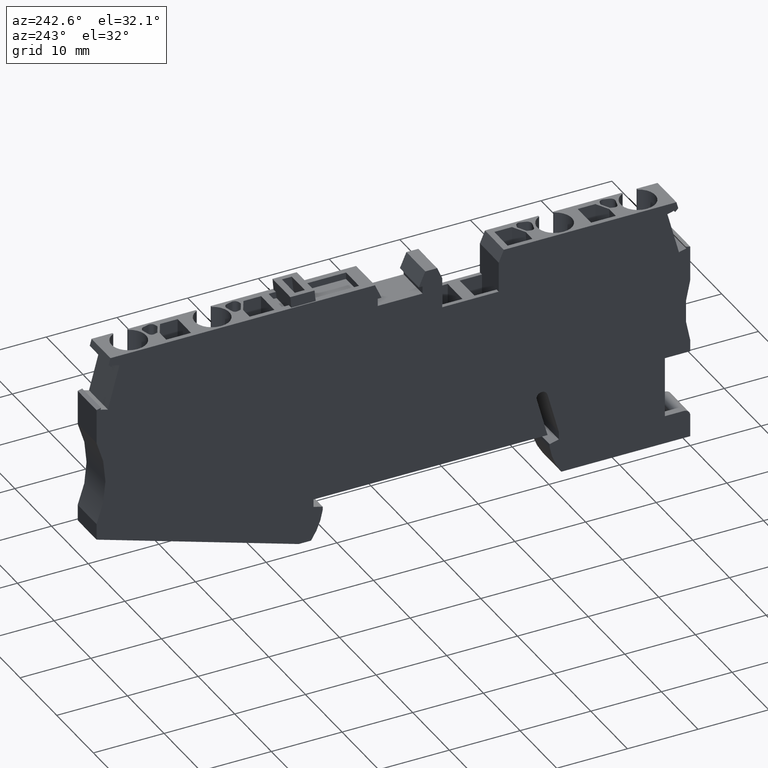
[diagram: clean part render]
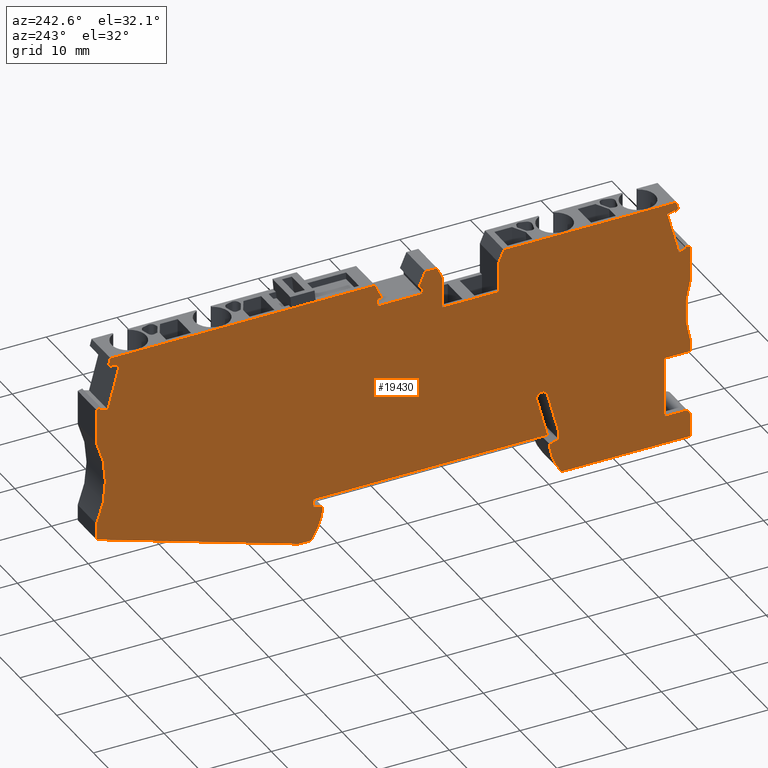
[diagram: same view with one face highlighted and labeled with its STEP entity id]
A machine part, auxiliary view. The second image highlights one B-rep face of the part: STEP entity #19430.
In plain terms, the highlighted planar face has unit normal (1, 0, -0).
Its self-contained STEP definition (entity closure, byte-faithful):
#100=CARTESIAN_POINT('',(-22.3678327783245,-21.2000000001803,
48.5199999999973));
#110=VERTEX_POINT('',#100);
#160=CARTESIAN_POINT('',(-22.3678327783245,-39.6931569607133,
48.5199999999973));
#170=DIRECTION('',(-2.05391259555654E-15,1.,0.));
#180=VECTOR('',#170,1.);
#190=LINE('',#160,#180);
#200=CARTESIAN_POINT('',(-22.3678327783245,-16.3000793279218,
48.5199999999973));
#210=VERTEX_POINT('',#200);
#220=EDGE_CURVE('',#110,#210,#190,.T.);
#1020=CARTESIAN_POINT('',(15.5196672216766,-44.3451570119223,
48.5199999999973));
#1030=DIRECTION('',(0.,1.,0.));
#1040=VECTOR('',#1030,1.);
#1050=LINE('',#1020,#1040);
#1060=CARTESIAN_POINT('',(15.5196672216766,-12.3250000000004,
48.5199999999973));
#1070=VERTEX_POINT('',#1060);
#1080=CARTESIAN_POINT('',(15.5196672216766,-11.2550000000008,
48.5199999999973));
#1090=VERTEX_POINT('',#1080);
#1100=EDGE_CURVE('',#1070,#1090,#1050,.T.);
#1550=CARTESIAN_POINT('',(13.4506669409568,-9.15000000000267,
48.5199999999973));
#1560=VERTEX_POINT('',#1550);
#1710=CARTESIAN_POINT('',(12.7321672216753,-10.8500000000026,
48.5199999999973));
#1720=VERTEX_POINT('',#1710);
#1750=CARTESIAN_POINT('',(-0.588529799346603,-42.3673191137585,
48.5199999999973));
#1760=DIRECTION('',(-0.389303997086923,-0.921109330021222,0.));
#1770=VECTOR('',#1760,1.);
#1780=LINE('',#1750,#1770);
#1790=EDGE_CURVE('',#1560,#1720,#1780,.T.);
#1960=CARTESIAN_POINT('',(-4.69574524451491,-41.8630164687898,
48.5199999999973));
#1970=DIRECTION('',(0.258819045102717,0.965925826289016,0.));
#1980=VECTOR('',#1970,1.);
#1990=LINE('',#1960,#1980);
#2000=CARTESIAN_POINT('',(-3.76783277832417,-38.3999999999923,
48.5199999999973));
#2010=VERTEX_POINT('',#2000);
#2020=CARTESIAN_POINT('',(-2.15824717892767,-32.3929447639182,
48.5199999999973));
#2030=VERTEX_POINT('',#2020);
#2040=EDGE_CURVE('',#2010,#2030,#1990,.T.);
#3620=CARTESIAN_POINT('',(21.3167687545899,-11.2550000000008,
48.5199999999973));
#3630=VERTEX_POINT('',#3620);
#3780=CARTESIAN_POINT('',(21.8446672216767,-11.2550000000008,
48.5199999999973));
#3790=VERTEX_POINT('',#3780);
#3820=CARTESIAN_POINT('',(-30.9543174626305,-11.2550000000008,
48.5199999999973));
#3830=DIRECTION('',(1.,0.,0.));
#3840=VECTOR('',#3830,1.);
#3850=LINE('',#3820,#3840);
#3860=EDGE_CURVE('',#3630,#3790,#3850,.T.);
#5350=CARTESIAN_POINT('',(15.1225128467016,-9.15000000000248,
48.5199999999973));
#5360=VERTEX_POINT('',#5350);
#5390=CARTESIAN_POINT('',(31.4487054040428,-46.3009969707497,
48.5199999999973));
#5400=DIRECTION('',(0.402320578211921,-0.915498854366965,0.));
#5410=VECTOR('',#5400,1.);
#5420=LINE('',#5390,#5410);
#5430=CARTESIAN_POINT('',(16.0475656887622,-11.2550000000008,
48.5199999999973));
#5440=VERTEX_POINT('',#5430);
#5450=EDGE_CURVE('',#5360,#5440,#5420,.T.);
#5820=CARTESIAN_POINT('',(-20.7658666864001,-16.6688508978045,
48.5199999999973));
#5830=VERTEX_POINT('',#5820);
#5860=CARTESIAN_POINT('',(-26.7897303657746,-39.1502162070807,
48.5199999999973));
#5870=DIRECTION('',(0.258819045102715,0.965925826289016,0.));
#5880=VECTOR('',#5870,1.);
#5890=LINE('',#5860,#5880);
#5900=CARTESIAN_POINT('',(-19.1288362261254,-10.5593700465262,
48.5199999999973));
#5910=VERTEX_POINT('',#5900);
#5920=EDGE_CURVE('',#5830,#5910,#5890,.T.);
#6210=CARTESIAN_POINT('',(-2.4678327783249,-39.848333950161,
48.5199999999973));
#6220=VERTEX_POINT('',#6210);
#6250=CARTESIAN_POINT('',(-2.46783277832347,-42.1365697226813,
48.5199999999973));
#6260=DIRECTION('',(6.29260532569731E-13,-1.,0.));
#6270=VECTOR('',#6260,1.);
#6280=LINE('',#6250,#6270);
#6290=CARTESIAN_POINT('',(-2.46783277832461,-40.3000000000014,
48.5199999999973));
#6300=VERTEX_POINT('',#6290);
#6310=EDGE_CURVE('',#6220,#6300,#6280,.T.);
#7600=CARTESIAN_POINT('',(-22.3678330870715,-41.2999999943141,
48.5199999999973));
#7610=VERTEX_POINT('',#7600);
#7780=CARTESIAN_POINT('',(-22.3678330870616,-44.4000000000009,
48.5199999999973));
#7790=VERTEX_POINT('',#7780);
#7820=CARTESIAN_POINT('',(-22.3678330870598,-39.6931569228054,
48.5199999999973));
#7830=DIRECTION('',(3.85705356542587E-13,1.,0.));
#7840=VECTOR('',#7830,1.);
#7850=LINE('',#7820,#7840);
#7860=EDGE_CURVE('',#7790,#7610,#7850,.T.);
#8560=CARTESIAN_POINT('',(-20.232855258731,-10.5454626322162,
48.5199999999973));
#8570=VERTEX_POINT('',#8560);
#8720=CARTESIAN_POINT('',(-20.1623768602548,-10.2824336682667,
48.5199999999973));
#8730=VERTEX_POINT('',#8720);
#8760=CARTESIAN_POINT('',(-27.8621918696399,-39.0185344922433,
48.5199999999973));
#8770=DIRECTION('',(-0.258819045101928,-0.965925826289227,0.));
#8780=VECTOR('',#8770,1.);
#8790=LINE('',#8760,#8780);
#8800=EDGE_CURVE('',#8730,#8570,#8790,.T.);
#9580=CARTESIAN_POINT('',(30.9321672216756,-39.5000000000005,
48.5199999999973));
#9590=VERTEX_POINT('',#9580);
#9620=CARTESIAN_POINT('',(30.9321672216756,-46.2375740568382,
48.5199999999973));
#9630=DIRECTION('',(0.,1.,0.));
#9640=VECTOR('',#9630,1.);
#9650=LINE('',#9620,#9640);
#9660=CARTESIAN_POINT('',(30.9321672216756,-38.4000000000006,
48.5199999999973));
#9670=VERTEX_POINT('',#9660);
#9680=EDGE_CURVE('',#9590,#9670,#9650,.T.);
#15560=CARTESIAN_POINT('',(7.105427357601E-15,7.46069872548105E-13,
48.5199999999973));
#15570=DIRECTION('',(0.,0.,1.));
#15580=DIRECTION('',(1.,0.,0.));
#15590=AXIS2_PLACEMENT_3D('',#15560,#15570,#15580);
#15600=PLANE('',#15590);
#15610=ORIENTED_EDGE('',*,*,#7860,.T.);
#15620=CARTESIAN_POINT('',(-35.0240117337573,-44.4000000000011,
48.5199999999973));
#15630=DIRECTION('',(-1.,-1.55014889813287E-14,0.));
#15640=VECTOR('',#15630,1.);
#15650=LINE('',#15620,#15640);
#15660=CARTESIAN_POINT('',(-4.1267764314573,-44.4000000000006,
48.5199999999973));
#15670=VERTEX_POINT('',#15660);
#15680=EDGE_CURVE('',#15670,#7790,#15650,.T.);
#15690=ORIENTED_EDGE('',*,*,#15680,.T.);
#15700=CARTESIAN_POINT('',(-11.861805457701,-38.8846282117031,
48.5199999999973));
#15710=DIRECTION('',(0.,0.,1.));
#15720=DIRECTION('',(1.,0.,0.));
#15730=AXIS2_PLACEMENT_3D('',#15700,#15710,#15720);
#15740=CIRCLE('',#15730,9.49999999999899);
#15750=EDGE_CURVE('',#15670,#6300,#15740,.T.);
#15760=ORIENTED_EDGE('',*,*,#15750,.F.);
#15770=ORIENTED_EDGE('',*,*,#6310,.T.);
#15780=CARTESIAN_POINT('',(-33.4459564075282,-31.5477707406809,
48.5199999999973));
#15790=DIRECTION('',(0.965925826289041,-0.258819045102623,0.));
#15800=VECTOR('',#15790,1.);
#15810=LINE('',#15780,#15800);
#15820=CARTESIAN_POINT('',(-3.76783277832419,-39.5000000000006,
48.5199999999973));
#15830=VERTEX_POINT('',#15820);
#15840=EDGE_CURVE('',#15830,#6220,#15810,.T.);
#15850=ORIENTED_EDGE('',*,*,#15840,.T.);
#15860=CARTESIAN_POINT('',(-3.76783277832419,-41.9769497935074,
48.5199999999973));
#15870=DIRECTION('',(0.,-1.,0.));
#15880=VECTOR('',#15870,1.);
#15890=LINE('',#15860,#15880);
#15900=EDGE_CURVE('',#2010,#15830,#15890,.T.);
#15910=ORIENTED_EDGE('',*,*,#15900,.T.);
#15920=ORIENTED_EDGE('',*,*,#2040,.F.);
#15930=CARTESIAN_POINT('',(-1.38550651789581,-32.6000000000007,
48.5199999999973));
#15940=DIRECTION('',(0.,0.,1.));
#15950=DIRECTION('',(1.,0.,0.));
#15960=AXIS2_PLACEMENT_3D('',#15930,#15940,#15950);
#15970=CIRCLE('',#15960,0.80000000000001);
#15980=CARTESIAN_POINT('',(-1.15584166251129,-31.8336749683064,
48.5199999999973));
#15990=VERTEX_POINT('',#15980);
#16000=EDGE_CURVE('',#15990,#2030,#15970,.T.);
#16010=ORIENTED_EDGE('',*,*,#16000,.T.);
#16020=CARTESIAN_POINT('',(-1.3156930297918,-32.5151788497179,
48.5199999999973));
#16030=DIRECTION('',(0.,0.,1.));
#16040=DIRECTION('',(1.,0.,0.));
#16050=AXIS2_PLACEMENT_3D('',#16020,#16030,#16040);
#16060=CIRCLE('',#16050,0.700000000000238);
#16070=CARTESIAN_POINT('',(-0.639544951389176,-32.6963521812896,
48.5199999999973));
#16080=VERTEX_POINT('',#16070);
#16090=EDGE_CURVE('',#16080,#15990,#16060,.T.);
#16100=ORIENTED_EDGE('',*,*,#16090,.T.);
#16110=CARTESIAN_POINT('',(-3.14670858760425,-42.0532142545311,
48.5199999999973));
#16120=DIRECTION('',(0.25881904510258,0.965925826289053,0.));
#16130=VECTOR('',#16120,1.);
#16140=LINE('',#16110,#16130);
#16150=CARTESIAN_POINT('',(-2.1678327783247,-38.4000000000007,
48.5199999999973));
#16160=VERTEX_POINT('',#16150);
#16170=EDGE_CURVE('',#16160,#16080,#16140,.T.);
#16180=ORIENTED_EDGE('',*,*,#16170,.T.);
#16190=CARTESIAN_POINT('',(-34.2873043683398,-38.4000000000007,
48.5199999999973));
#16200=DIRECTION('',(-1.,0.,0.));
#16210=VECTOR('',#16200,1.);
#16220=LINE('',#16190,#16210);
#16230=EDGE_CURVE('',#9670,#16160,#16220,.T.);
#16240=ORIENTED_EDGE('',*,*,#16230,.T.);
#16250=ORIENTED_EDGE('',*,*,#9680,.T.);
#16260=CARTESIAN_POINT('',(-36.6456801825381,-57.6074296381885,
48.5199999999973));
#16270=DIRECTION('',(0.965925826289086,0.258819045102457,0.));
#16280=VECTOR('',#16270,1.);
#16290=LINE('',#16260,#16280);
#16300=CARTESIAN_POINT('',(29.6321672216754,-39.8483339501609,
48.5199999999973));
#16310=VERTEX_POINT('',#16300);
#16320=EDGE_CURVE('',#16310,#9590,#16290,.T.);
#16330=ORIENTED_EDGE('',*,*,#16320,.T.);
#16340=CARTESIAN_POINT('',(29.6321672216711,-46.0779541276638,
48.5199999999973));
#16350=DIRECTION('',(6.9022565440946E-13,1.,0.));
#16360=VECTOR('',#16350,1.);
#16370=LINE('',#16340,#16360);
#16380=CARTESIAN_POINT('',(29.6321672216751,-40.3000000000012,
48.5199999999973));
#16390=VERTEX_POINT('',#16380);
#16400=EDGE_CURVE('',#16390,#16310,#16370,.T.);
#16410=ORIENTED_EDGE('',*,*,#16400,.T.);
#16420=CARTESIAN_POINT('',(39.0261399010515,-38.8846282117031,
48.5199999999973));
#16430=DIRECTION('',(0.,0.,-1.));
#16440=DIRECTION('',(-1.,0.,0.));
#16450=AXIS2_PLACEMENT_3D('',#16420,#16430,#16440);
#16460=CIRCLE('',#16450,9.499999999999);
#16470=CARTESIAN_POINT('',(31.2911108748078,-44.4000000000007,
48.5199999999973));
#16480=VERTEX_POINT('',#16470);
#16490=EDGE_CURVE('',#16480,#16390,#16460,.T.);
#16500=ORIENTED_EDGE('',*,*,#16490,.T.);
#16510=CARTESIAN_POINT('',(-35.0240117337567,-44.3999999999968,
48.5199999999973));
#16520=DIRECTION('',(-1.,5.79120085220097E-14,0.));
#16530=VECTOR('',#16520,1.);
#16540=LINE('',#16510,#16530);
#16550=CARTESIAN_POINT('',(33.0363951674783,-44.4000000000008,
48.5199999999973));
#16560=VERTEX_POINT('',#16550);
#16570=EDGE_CURVE('',#16560,#16480,#16540,.T.);
#16580=ORIENTED_EDGE('',*,*,#16570,.T.);
#16590=CARTESIAN_POINT('',(-37.7300719678448,-66.4390920013757,
48.5199999999973));
#16600=DIRECTION('',(-0.954769257307126,-0.297347717834187,0.));
#16610=VECTOR('',#16600,1.);
#16620=LINE('',#16590,#16610);
#16630=CARTESIAN_POINT('',(61.6321672216756,-35.494301062852,
48.5199999999973));
#16640=VERTEX_POINT('',#16630);
#16650=EDGE_CURVE('',#16640,#16560,#16620,.T.);
#16660=ORIENTED_EDGE('',*,*,#16650,.T.);
#16670=CARTESIAN_POINT('',(61.6321672216756,-50.0070600765573,
48.5199999999973));
#16680=DIRECTION('',(-8.32667268468867E-17,-1.,0.));
#16690=VECTOR('',#16680,1.);
#16700=LINE('',#16670,#16690);
#16710=CARTESIAN_POINT('',(61.6321672216475,-33.2000000000664,
48.5200000001475));
#16720=VERTEX_POINT('',#16710);
#16730=EDGE_CURVE('',#16720,#16640,#16700,.T.);
#16740=ORIENTED_EDGE('',*,*,#16730,.T.);
#16750=CARTESIAN_POINT('',(75.3798943064869,-27.200000000002,
48.5199999999973));
#16760=DIRECTION('',(1.09240999716883E-11,6.46588825410369E-17,1.));
#16770=DIRECTION('',(1.,-1.38777878078145E-16,-1.09240999716883E-11));
#16780=AXIS2_PLACEMENT_3D('',#16750,#16760,#16770);
#16790=CIRCLE('',#16780,15.);
#16800=CARTESIAN_POINT('',(61.6321672216576,-21.1999999999142,
48.5200000001475));
#16810=VERTEX_POINT('',#16800);
#16820=EDGE_CURVE('',#16810,#16720,#16790,.T.);
#16830=ORIENTED_EDGE('',*,*,#16820,.T.);
#16840=CARTESIAN_POINT('',(61.6321672216757,-50.0070600765574,
48.5199999999973));
#16850=DIRECTION('',(-5.55111512312578E-17,-1.,0.));
#16860=VECTOR('',#16850,1.);
#16870=LINE('',#16840,#16860);
#16880=CARTESIAN_POINT('',(61.6321672216757,-16.3000793279228,
48.5199999999973));
#16890=VERTEX_POINT('',#16880);
#16900=EDGE_CURVE('',#16890,#16810,#16870,.T.);
#16910=ORIENTED_EDGE('',*,*,#16900,.T.);
#16920=CARTESIAN_POINT('',(-28.6049712954992,7.87888906435055,
48.5199999999973));
#16930=DIRECTION('',(0.965925826290939,-0.25881904509554,0.));
#16940=VECTOR('',#16930,1.);
#16950=LINE('',#16920,#16940);
#16960=CARTESIAN_POINT('',(60.993263365406,-16.1288855555992,
48.5199999999973));
#16970=VERTEX_POINT('',#16960);
#16980=EDGE_CURVE('',#16970,#16890,#16950,.T.);
#16990=ORIENTED_EDGE('',*,*,#16980,.T.);
#17000=CARTESIAN_POINT('',(70.3579720573371,-51.0784541918285,
48.5199999999973));
#17010=DIRECTION('',(0.258819045103503,-0.965925826288805,0.));
#17020=VECTOR('',#17010,1.);
#17030=LINE('',#17000,#17020);
#17040=CARTESIAN_POINT('',(61.0637417638805,-16.3919145195439,
48.5199999999973));
#17050=VERTEX_POINT('',#17040);
#17060=EDGE_CURVE('',#16970,#17050,#17030,.T.);
#17070=ORIENTED_EDGE('',*,*,#17060,.F.);
#17080=CARTESIAN_POINT('',(-34.7368944819781,-42.0616176360634,
48.5199999999973));
#17090=DIRECTION('',(-0.965925826288933,-0.258819045103026,0.));
#17100=VECTOR('',#17090,1.);
#17110=LINE('',#17080,#17100);
#17120=CARTESIAN_POINT('',(60.0302011297503,-16.6688508978043,
48.5199999999973));
#17130=VERTEX_POINT('',#17120);
#17140=EDGE_CURVE('',#17050,#17130,#17110,.T.);
#17150=ORIENTED_EDGE('',*,*,#17140,.F.);
#17160=CARTESIAN_POINT('',(69.21254186347,-50.9378130484296,
48.5199999999973));
#17170=DIRECTION('',(-0.258819045102705,0.965925826289019,0.));
#17180=VECTOR('',#17170,1.);
#17190=LINE('',#17160,#17180);
#17200=CARTESIAN_POINT('',(58.3931706694758,-10.5593700465269,
48.5199999999973));
#17210=VERTEX_POINT('',#17200);
#17220=EDGE_CURVE('',#17130,#17210,#17190,.T.);
#17230=ORIENTED_EDGE('',*,*,#17220,.F.);
#17240=CARTESIAN_POINT('',(-33.9055344520892,-35.290733546277,
48.5199999999973));
#17250=DIRECTION('',(0.9659258262891,0.258819045102404,0.));
#17260=VECTOR('',#17250,1.);
#17270=LINE('',#17240,#17260);
#17280=CARTESIAN_POINT('',(59.4267113036067,-10.2824336682672,
48.5199999999973));
#17290=VERTEX_POINT('',#17280);
#17300=EDGE_CURVE('',#17210,#17290,#17270,.T.);
#17310=ORIENTED_EDGE('',*,*,#17300,.F.);
#17320=CARTESIAN_POINT('',(70.3579720572687,-51.0784541918201,
48.5199999999973));
#17330=DIRECTION('',(0.258819045101928,-0.965925826289227,0.));
#17340=VECTOR('',#17330,1.);
#17350=LINE('',#17320,#17340);
#17360=CARTESIAN_POINT('',(59.4971897020823,-10.5454626322172,
48.5199999999973));
#17370=VERTEX_POINT('',#17360);
#17380=EDGE_CURVE('',#17290,#17370,#17350,.T.);
#17390=ORIENTED_EDGE('',*,*,#17380,.F.);
#17400=CARTESIAN_POINT('',(24.5844766740098,-45.4581756601955,
48.5199999999973));
#17410=DIRECTION('',(0.707106781187503,0.707106781185593,0.));
#17420=VECTOR('',#17410,1.);
#17430=LINE('',#17400,#17420);
#17440=CARTESIAN_POINT('',(59.9299328899745,-10.1127194443262,
48.5199999999973));
#17450=VERTEX_POINT('',#17440);
#17460=EDGE_CURVE('',#17370,#17450,#17430,.T.);
#17470=ORIENTED_EDGE('',*,*,#17460,.F.);
#17480=CARTESIAN_POINT('',(70.9253346766914,-51.1481175619186,
48.5199999999973));
#17490=DIRECTION('',(0.258819045102926,-0.96592582628896,0.));
#17500=VECTOR('',#17490,1.);
#17510=LINE('',#17480,#17500);
#17520=CARTESIAN_POINT('',(59.6719729923291,-9.14999999999995,
48.5199999999973));
#17530=VERTEX_POINT('',#17520);
#17540=EDGE_CURVE('',#17530,#17450,#17510,.T.);
#17550=ORIENTED_EDGE('',*,*,#17540,.T.);
#17560=CARTESIAN_POINT('',(-30.695855961931,-9.15000000001039,
48.5199999999973));
#17570=DIRECTION('',(-1.,-1.1550482792444E-13,0.));
#17580=VECTOR('',#17570,1.);
#17590=LINE('',#17560,#17580);
#17600=CARTESIAN_POINT('',(22.2418215966518,-9.15000000000427,
48.5199999999973));
#17610=VERTEX_POINT('',#17600);
#17620=EDGE_CURVE('',#17530,#17610,#17590,.T.);
#17630=ORIENTED_EDGE('',*,*,#17620,.F.);
#17640=CARTESIAN_POINT('',(7.22281664605164,-43.3264318571172,
48.5199999999973));
#17650=DIRECTION('',(0.402320578212711,0.915498854366618,0.));
#17660=VECTOR('',#17650,1.);
#17670=LINE('',#17640,#17660);
#17680=EDGE_CURVE('',#3630,#17610,#17670,.T.);
#17690=ORIENTED_EDGE('',*,*,#17680,.T.);
#17700=ORIENTED_EDGE('',*,*,#3860,.F.);
#17710=CARTESIAN_POINT('',(21.8446672216767,-45.1217693596332,
48.5199999999973));
#17720=DIRECTION('',(0.,-1.,0.));
#17730=VECTOR('',#17720,1.);
#17740=LINE('',#17710,#17730);
#17750=CARTESIAN_POINT('',(21.8446672216767,-12.3250000000008,
48.5199999999973));
#17760=VERTEX_POINT('',#17750);
#17770=EDGE_CURVE('',#3790,#17760,#17740,.T.);
#17780=ORIENTED_EDGE('',*,*,#17770,.F.);
#17790=CARTESIAN_POINT('',(-31.0856969427962,-12.3249999999978,
48.5199999999973));
#17800=DIRECTION('',(-1.,5.79813974610488E-14,0.));
#17810=VECTOR('',#17800,1.);
#17820=LINE('',#17790,#17810);
#17830=EDGE_CURVE('',#17760,#1070,#17820,.T.);
#17840=ORIENTED_EDGE('',*,*,#17830,.F.);
#17850=ORIENTED_EDGE('',*,*,#1100,.F.);
#17860=CARTESIAN_POINT('',(-30.9543174626305,-11.2550000000008,
48.5199999999973));
#17870=DIRECTION('',(1.,0.,0.));
#17880=VECTOR('',#17870,1.);
#17890=LINE('',#17860,#17880);
#17900=EDGE_CURVE('',#1090,#5440,#17890,.T.);
#17910=ORIENTED_EDGE('',*,*,#17900,.F.);
#17920=ORIENTED_EDGE('',*,*,#5450,.T.);
#17930=CARTESIAN_POINT('',(-30.6958559619307,-9.15000000000802,
48.5199999999973));
#17940=DIRECTION('',(-1.,-1.21042065259758E-13,0.));
#17950=VECTOR('',#17940,1.);
#17960=LINE('',#17930,#17950);
#17970=EDGE_CURVE('',#5360,#1560,#17960,.T.);
#17980=ORIENTED_EDGE('',*,*,#17970,.F.);
#17990=ORIENTED_EDGE('',*,*,#1790,.F.);
#18000=CARTESIAN_POINT('',(12.7321672216755,-44.0028950484053,
48.5199999999973));
#18010=DIRECTION('',(-5.53723733531797E-15,1.,0.));
#18020=VECTOR('',#18010,1.);
#18030=LINE('',#18000,#18020);
#18040=CARTESIAN_POINT('',(12.7321672216753,-15.1500000000009,
48.5199999999973));
#18050=VERTEX_POINT('',#18040);
#18060=EDGE_CURVE('',#18050,#1720,#18030,.T.);
#18070=ORIENTED_EDGE('',*,*,#18060,.T.);
#18080=CARTESIAN_POINT('',(-31.4325633273473,-15.1500000000009,
48.5199999999973));
#18090=DIRECTION('',(1.,0.,0.));
#18100=VECTOR('',#18090,1.);
#18110=LINE('',#18080,#18100);
#18120=CARTESIAN_POINT('',(4.73216722167548,-15.1500000000009,
48.5199999999973));
#18130=VERTEX_POINT('',#18120);
#18140=EDGE_CURVE('',#18130,#18050,#18110,.T.);
#18150=ORIENTED_EDGE('',*,*,#18140,.T.);
#18160=CARTESIAN_POINT('',(4.73216722167558,-43.0206185611821,
48.5199999999973));
#18170=DIRECTION('',(-2.76167977375508E-15,1.,0.));
#18180=VECTOR('',#18170,1.);
#18190=LINE('',#18160,#18180);
#18200=CARTESIAN_POINT('',(4.73216722167547,-10.8500000000024,
48.5199999999973));
#18210=VERTEX_POINT('',#18200);
#18220=EDGE_CURVE('',#18130,#18210,#18190,.T.);
#18230=ORIENTED_EDGE('',*,*,#18220,.F.);
#18240=CARTESIAN_POINT('',(19.0732001481594,-44.7814759919545,
48.5199999999973));
#18250=DIRECTION('',(-0.389303997086923,0.921109330021222,0.));
#18260=VECTOR('',#18250,1.);
#18270=LINE('',#18240,#18260);
#18280=CARTESIAN_POINT('',(4.01366750239384,-9.15000000000193,
48.5199999999973));
#18290=VERTEX_POINT('',#18280);
#18300=EDGE_CURVE('',#18210,#18290,#18270,.T.);
#18310=ORIENTED_EDGE('',*,*,#18300,.F.);
#18320=CARTESIAN_POINT('',(-30.69585596193,-9.15000000000193,
48.5199999999973));
#18330=DIRECTION('',(1.,0.,0.));
#18340=VECTOR('',#18330,1.);
#18350=LINE('',#18320,#18340);
#18360=CARTESIAN_POINT('',(-20.4076385489785,-9.15000000000193,
48.5199999999973));
#18370=VERTEX_POINT('',#18360);
#18380=EDGE_CURVE('',#18370,#18290,#18350,.T.);
#18390=ORIENTED_EDGE('',*,*,#18380,.T.);
#18400=CARTESIAN_POINT('',(-28.3934111192612,-38.9533089699354,
48.5199999999973));
#18410=DIRECTION('',(-0.258819045102936,-0.965925826288957,0.));
#18420=VECTOR('',#18410,1.);
#18430=LINE('',#18400,#18420);
#18440=CARTESIAN_POINT('',(-20.6655984466232,-10.1127194443252,
48.5199999999973));
#18450=VERTEX_POINT('',#18440);
#18460=EDGE_CURVE('',#18370,#18450,#18430,.T.);
#18470=ORIENTED_EDGE('',*,*,#18460,.F.);
#18480=CARTESIAN_POINT('',(-29.7042555077718,-1.07406238320077,
48.5199999999973));
#18490=DIRECTION('',(-0.707106781187495,0.7071067811856,0.));
#18500=VECTOR('',#18490,1.);
#18510=LINE('',#18480,#18500);
#18520=EDGE_CURVE('',#8570,#18450,#18510,.T.);
#18530=ORIENTED_EDGE('',*,*,#18520,.T.);
#18540=ORIENTED_EDGE('',*,*,#8800,.T.);
#18550=CARTESIAN_POINT('',(-30.4949591286781,-7.51382659371585,
48.5199999999973));
#18560=DIRECTION('',(-0.9659258262891,0.258819045102404,0.));
#18570=VECTOR('',#18560,1.);
#18580=LINE('',#18550,#18570);
#18590=EDGE_CURVE('',#5910,#8730,#18580,.T.);
#18600=ORIENTED_EDGE('',*,*,#18590,.T.);
#18610=ORIENTED_EDGE('',*,*,#5920,.T.);
#18620=CARTESIAN_POINT('',(-31.2733580505142,-13.8533770723106,
48.5199999999973));
#18630=DIRECTION('',(0.96592582628901,-0.25881904510274,0.));
#18640=VECTOR('',#18630,1.);
#18650=LINE('',#18620,#18640);
#18660=CARTESIAN_POINT('',(-21.7994073205285,-16.3919145195448,
48.5199999999973));
#18670=VERTEX_POINT('',#18660);
#18680=EDGE_CURVE('',#18670,#5830,#18650,.T.);
#18690=ORIENTED_EDGE('',*,*,#18680,.T.);
#18700=CARTESIAN_POINT('',(-27.8621918696753,-39.0185344922389,
48.5199999999973));
#18710=DIRECTION('',(-0.258819045103216,-0.965925826288882,0.));
#18720=VECTOR('',#18710,1.);
#18730=LINE('',#18700,#18720);
#18740=CARTESIAN_POINT('',(-21.7289289220527,-16.1288855555976,
48.5199999999973));
#18750=VERTEX_POINT('',#18740);
#18760=EDGE_CURVE('',#18750,#18670,#18730,.T.);
#18770=ORIENTED_EDGE('',*,*,#18760,.T.);
#18780=CARTESIAN_POINT('',(-31.8869546500592,-18.8507203460327,
48.5199999999973));
#18790=DIRECTION('',(-0.965925826290942,-0.25881904509553,0.));
#18800=VECTOR('',#18790,1.);
#18810=LINE('',#18780,#18800);
#18820=EDGE_CURVE('',#18750,#210,#18810,.T.);
#18830=ORIENTED_EDGE('',*,*,#18820,.F.);
#18840=ORIENTED_EDGE('',*,*,#220,.T.);
#18850=CARTESIAN_POINT('',(-36.6769207996351,-25.700000000002,
48.5199999999973));
#18860=DIRECTION('',(1.09240999716883E-11,6.46588825410369E-17,1.));
#18870=DIRECTION('',(1.,-1.38777878078145E-16,-1.09240999716883E-11));
#18880=AXIS2_PLACEMENT_3D('',#18850,#18860,#18870);
#18890=CIRCLE('',#18880,15.);
#18900=CARTESIAN_POINT('',(-22.3678327783502,-30.1999999999045,
48.519999999841));
#18910=VERTEX_POINT('',#18900);
#18920=EDGE_CURVE('',#18910,#110,#18890,.T.);
#18930=ORIENTED_EDGE('',*,*,#18920,.T.);
#18940=CARTESIAN_POINT('',(-22.3678327783246,-39.6931569607133,
48.5199999999973));
#18950=DIRECTION('',(-2.05391259555654E-15,1.,0.));
#18960=VECTOR('',#18950,1.);
#18970=LINE('',#18940,#18960);
#18980=CARTESIAN_POINT('',(-22.3678327783246,-31.8,48.5199999999973));
#18990=VERTEX_POINT('',#18980);
#19000=EDGE_CURVE('',#18990,#18910,#18970,.T.);
#19010=ORIENTED_EDGE('',*,*,#19000,.T.);
#19020=CARTESIAN_POINT('',(-33.4769262663805,-31.8,48.5199999999973));
#19030=DIRECTION('',(-1.,0.,0.));
#19040=VECTOR('',#19030,1.);
#19050=LINE('',#19020,#19040);
#19060=CARTESIAN_POINT('',(-18.7678330870612,-31.8,48.5199999999973));
#19070=VERTEX_POINT('',#19060);
#19080=EDGE_CURVE('',#19070,#18990,#19050,.T.);
#19090=ORIENTED_EDGE('',*,*,#19080,.T.);
#19100=CARTESIAN_POINT('',(-18.7678330870612,-40.1351813420557,
48.5199999999973));
#19110=DIRECTION('',(0.,1.,0.));
#19120=VECTOR('',#19110,1.);
#19130=LINE('',#19100,#19120);
#19140=CARTESIAN_POINT('',(-18.7678330870612,-40.4000000000009,
48.5199999999973));
#19150=VERTEX_POINT('',#19140);
#19160=EDGE_CURVE('',#19150,#19070,#19130,.T.);
#19170=ORIENTED_EDGE('',*,*,#19160,.T.);
#19180=CARTESIAN_POINT('',(-34.5328734901456,-40.4000000000009,
48.5199999999973));
#19190=DIRECTION('',(1.,0.,0.));
#19200=VECTOR('',#19190,1.);
#19210=LINE('',#19180,#19200);
#19220=CARTESIAN_POINT('',(-21.4584315387535,-40.4000000000009,
48.5199999999973));
#19230=VERTEX_POINT('',#19220);
#19240=EDGE_CURVE('',#19230,#19150,#19210,.T.);
#19250=ORIENTED_EDGE('',*,*,#19240,.T.);
#19260=CARTESIAN_POINT('',(-21.4584315387535,-39.8048173925986,
48.5199999999973));
#19270=DIRECTION('',(0.,1.,0.));
#19280=VECTOR('',#19270,1.);
#19290=LINE('',#19260,#19280);
#19300=CARTESIAN_POINT('',(-21.4584315387535,-40.4000491007162,
48.5199999999972));
#19310=VERTEX_POINT('',#19300);
#19320=EDGE_CURVE('',#19310,#19230,#19290,.T.);
#19330=ORIENTED_EDGE('',*,*,#19320,.T.);
#19340=CARTESIAN_POINT('',(-21.4678330870998,-41.2999999943145,
48.5199999999973));
#19350=DIRECTION('',(-1.09240999716883E-11,-6.46588825410369E-17,-1.));
#19360=DIRECTION('',(1.,-1.38777878078145E-16,-1.09240999716883E-11));
#19370=AXIS2_PLACEMENT_3D('',#19340,#19350,#19360);
#19380=CIRCLE('',#19370,0.89999999999984);
#19390=EDGE_CURVE('',#7610,#19310,#19380,.T.);
#19400=ORIENTED_EDGE('',*,*,#19390,.T.);
#19410=EDGE_LOOP('',(#19400,#19330,#19250,#19170,#19090,#19010,#18930,
#18840,#18830,#18770,#18690,#18610,#18600,#18540,#18530,#18470,#18390,
#18310,#18230,#18150,#18070,#17990,#17980,#17920,#17910,#17850,#17840,
#17780,#17700,#17690,#17630,#17550,#17470,#17390,#17310,#17230,#17150,
#17070,#16990,#16910,#16830,#16740,#16660,#16580,#16500,#16410,#16330,
#16250,#16240,#16180,#16100,#16010,#15920,#15910,#15850,#15770,#15760,
#15690,#15610));
#19420=FACE_OUTER_BOUND('',#19410,.T.);
#19430=ADVANCED_FACE('',(#19420),#15600,.F.);